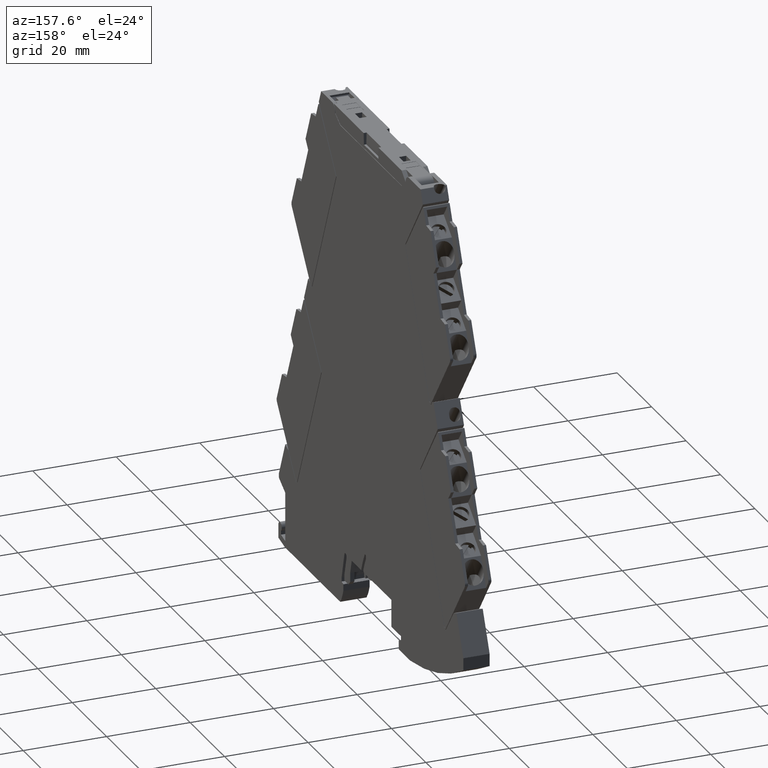
[diagram: clean part render]
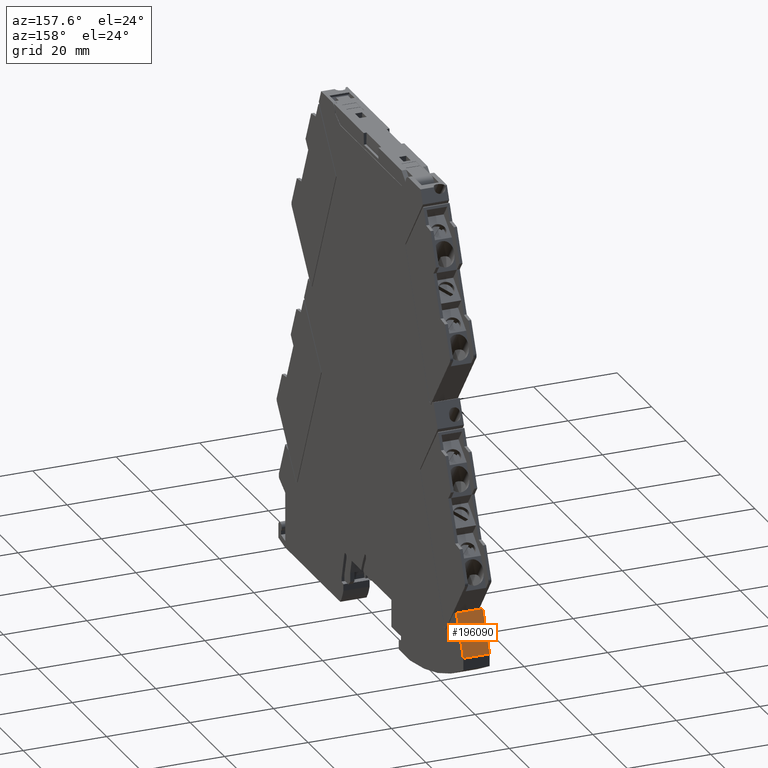
[diagram: same view with one face highlighted and labeled with its STEP entity id]
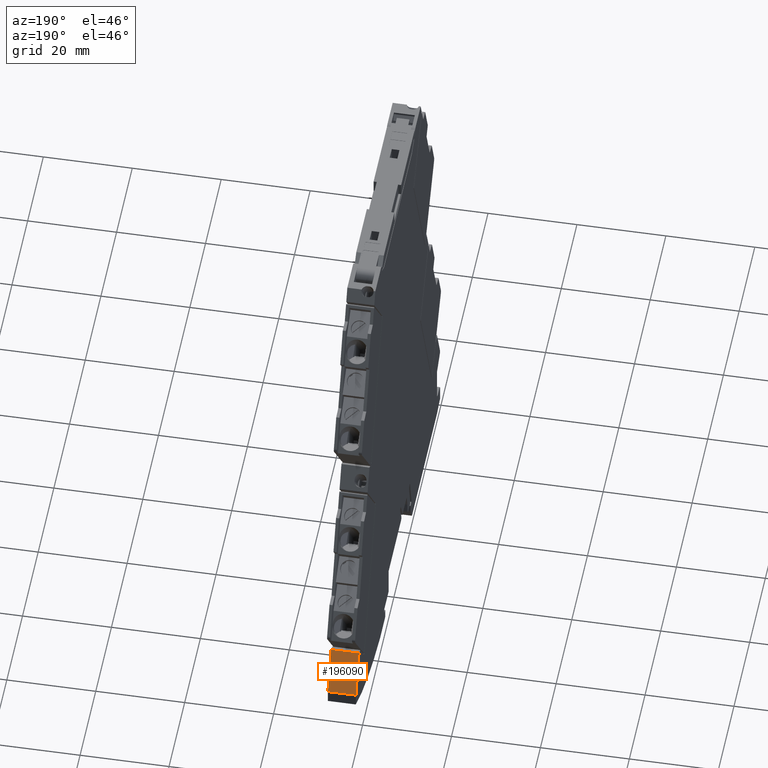
[diagram: same view with one face highlighted and labeled with its STEP entity id]
A machine part, auxiliary view. The second image highlights one B-rep face of the part: STEP entity #196090.
A second angle (auxiliary view) of the same face is appended — the face is thin or edge-on in the first view.
In plain terms, the highlighted planar face has unit normal (-0, -0.9171, -0.3987).
Its self-contained STEP definition (entity closure, byte-faithful):
#65080=CARTESIAN_POINT('',(69.7507235919569,6.77539492033612,
-14.699999999052));
#65090=VERTEX_POINT('',#65080);
#65120=CARTESIAN_POINT('',(72.6967491485635,1.32720424108694E-14,
-14.6999999990259));
#65130=DIRECTION('',(0.398749068924908,-0.917060074385271,
3.53810057950393E-12));
#65140=VECTOR('',#65130,1.);
#65150=LINE('',#65120,#65140);
#65160=CARTESIAN_POINT('',(65.7169097088167,16.0525317164235,
-14.6999999990878));
#65170=VERTEX_POINT('',#65160);
#65180=EDGE_CURVE('',#65170,#65090,#65150,.T.);
#69970=CARTESIAN_POINT('',(65.7169097087608,16.0525317164236,
-8.39999999936026));
#69980=VERTEX_POINT('',#69970);
#70010=CARTESIAN_POINT('',(79.5450440541298,-15.749999999987,
-8.39999999923727));
#70020=DIRECTION('',(-0.398749068924908,0.917060074385271,
-3.54654604060197E-12));
#70030=VECTOR('',#70020,1.);
#70040=LINE('',#70010,#70030);
#70050=CARTESIAN_POINT('',(69.750723591901,6.77539492033617,
-8.39999999932438));
#70060=VERTEX_POINT('',#70050);
#70070=EDGE_CURVE('',#70060,#69980,#70040,.T.);
#195670=CARTESIAN_POINT('',(65.7169097086853,16.0525317164236,
0.100000000910413));
#195680=DIRECTION('',(-8.87912561076062E-12,6.54588571843691E-15,1.));
#195690=VECTOR('',#195680,1.);
#195700=LINE('',#195670,#195690);
#195710=EDGE_CURVE('',#65170,#69980,#195700,.T.);
#195820=CARTESIAN_POINT('',(69.7507235918255,6.77539492033623,
0.100000000945879));
#195830=DIRECTION('',(-8.87912561076062E-12,6.54588571843692E-15,1.));
#195840=VECTOR('',#195830,1.);
#195850=LINE('',#195820,#195840);
#195860=EDGE_CURVE('',#65090,#70060,#195850,.T.);
#195980=CARTESIAN_POINT('',(65.7952796331262,15.8722932299443,
-8.39999999935956));
#195990=DIRECTION('',(-0.917060074385271,-0.398749068924908,
-8.14008142724479E-12));
#196000=DIRECTION('',(-0.398749068924908,0.917060074385271,
-3.54654604060197E-12));
#196010=AXIS2_PLACEMENT_3D('',#195980,#195990,#196000);
#196020=PLANE('',#196010);
#196030=ORIENTED_EDGE('',*,*,#70070,.F.);
#196040=ORIENTED_EDGE('',*,*,#195710,.T.);
#196050=ORIENTED_EDGE('',*,*,#65180,.F.);
#196060=ORIENTED_EDGE('',*,*,#195860,.F.);
#196070=EDGE_LOOP('',(#196060,#196050,#196040,#196030));
#196080=FACE_OUTER_BOUND('',#196070,.T.);
#196090=ADVANCED_FACE('',(#196080),#196020,.F.);